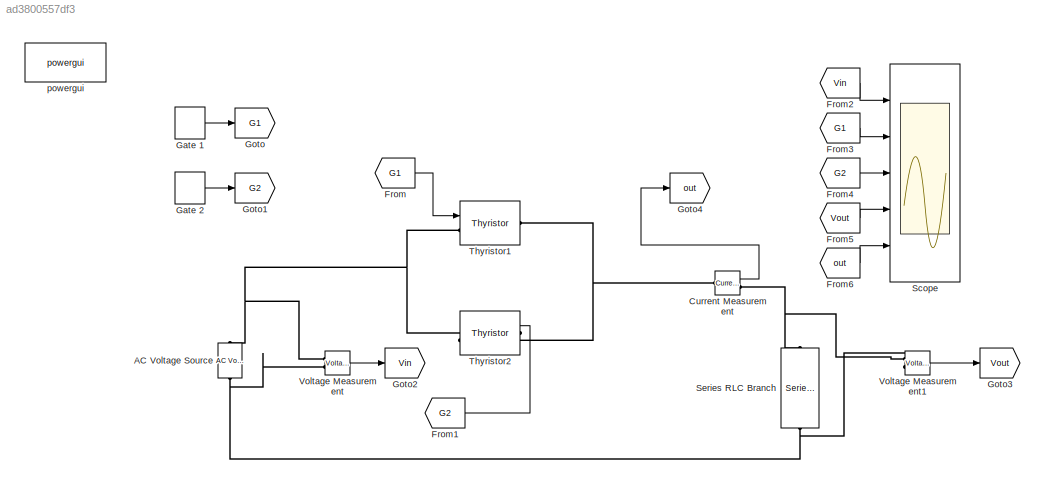
MODEL slx_ad3800557df3
KIND model
CONFIG AbsTol = auto
CONFIG EnableMultiTasking = off
CONFIG FixedStep = auto
CONFIG MaxStep = auto
CONFIG MinStep = auto
CONFIG RelTol = 1e-3
CONFIG SampleTimeConstraint = Unconstrained
CONFIG SolverName = VariableStepAuto
CONFIG StartTime = 0.0
CONFIG StopTime = 0.1
BLOCK [Reference] AC Voltage Source  REF=spsACVoltageSourceLib/AC Voltage Source
  Ports = [0, 0, 0, 0, 0, 1, 1]
  SourceBlock = spsACVoltageSourceLib/AC Voltage Source
  SourceProductBaseCode = PS
  SourceType = AC Voltage Source
BLOCK [Reference] Current Measurement  REF=spsCurrentMeasurementLib/Current Measurement
  Ports = [0, 1, 0, 0, 0, 1, 1]
  SourceBlock = spsCurrentMeasurementLib/Current Measurement
  SourceProductBaseCode = PS
  SourceType = Current Measurement
  UserDataPersistent = on
BLOCK [From] From
  GotoTag = G1
BLOCK [From] From1
  GotoTag = G2
BLOCK [From] From2
  GotoTag = Vin
BLOCK [From] From3
  GotoTag = G1
BLOCK [From] From4
  GotoTag = G2
BLOCK [From] From5
  GotoTag = Vout
BLOCK [From] From6
  GotoTag = out
BLOCK [DiscretePulseGenerator] Gate 1
  Period = 0.02
  PhaseDelay = 0.02*(80/360)
  Ports = [0, 1]
  PulseType = Time based
  PulseWidth = 5
BLOCK [DiscretePulseGenerator] Gate 2
  Period = 0.02
  PhaseDelay = 0.02*(260/360)
  Ports = [0, 1]
  PulseType = Time based
  PulseWidth = 5
BLOCK [Goto] Goto
  GotoTag = G1
BLOCK [Goto] Goto1
  GotoTag = G2
BLOCK [Goto] Goto2
  GotoTag = Vin
BLOCK [Goto] Goto3
  GotoTag = Vout
BLOCK [Goto] Goto4
  GotoTag = out
BLOCK [Scope] Scope
  Floating = off
  NumInputPorts = 5
  Ports = [5]
  ScopeSpecificationString = Simulink.scopes.TimeScopeBlockCfg('CurrentConfiguration', extmgr.ConfigurationSet(extmgr.Configuration('Core','General UI',true),extmgr.Configuration('Core','Source UI',true),extmgr.Configuration('Sources','WiredSimulink',true),extmgr.Configuration('Visuals','Time Domain',true,'SerializedDisplays',{struct('MinYLimReal','-212.13203','MaxYLimReal','212.13203','YLabelReal','volts','MinYLimMag',' 0.00...<+4638ch>
BLOCK [Reference] Series RLC Branch  REF=spsSeriesRLCBranchLib/Series RLC Branch
  NameLocation = left
  Ports = [0, 0, 0, 0, 0, 1, 1]
  SourceBlock = spsSeriesRLCBranchLib/Series RLC Branch
  SourceProductBaseCode = PS
  SourceType = Series RLC Branch
BLOCK [Reference] Thyristor1  REF=spsThyristorLib/Thyristor
  Ports = [1, 0, 0, 0, 0, 1, 1]
  SourceBlock = spsThyristorLib/Thyristor
  SourceProductBaseCode = PS
  SourceType = Thyristor
BLOCK [Reference] Thyristor2  REF=spsThyristorLib/Thyristor
  NameLocation = top
  Ports = [1, 0, 0, 0, 0, 1, 1]
  SourceBlock = spsThyristorLib/Thyristor
  SourceProductBaseCode = PS
  SourceType = Thyristor
BLOCK [Reference] Voltage Measurement  REF=spsVoltageMeasurementLib/Voltage Measurement
  Ports = [0, 1, 0, 0, 0, 2]
  SourceBlock = spsVoltageMeasurementLib/Voltage Measurement
  SourceProductBaseCode = PS
  SourceType = Voltage Measurement
  UserDataPersistent = on
BLOCK [Reference] Voltage Measurement1  REF=spsVoltageMeasurementLib/Voltage Measurement
  Ports = [0, 1, 0, 0, 0, 2]
  SourceBlock = spsVoltageMeasurementLib/Voltage Measurement
  SourceProductBaseCode = PS
  SourceType = Voltage Measurement
  UserDataPersistent = on
BLOCK [Reference] powergui  REF=spspowerguiLib/powergui
  Ports = []
  Priority = 1
  SourceBlock = spspowerguiLib/powergui
  SourceProductBaseCode = PS
  SourceType = PSB option menu block
LINE Current Measurement:1 -> Goto4:1
LINE From1:1 -> Thyristor2:1
LINE From2:1 -> Scope:1
LINE From3:1 -> Scope:2
LINE From4:1 -> Scope:3
LINE From5:1 -> Scope:4
LINE From6:1 -> Scope:5
LINE From:1 -> Thyristor1:1
LINE Gate 1:1 -> Goto:1
LINE Gate 2:1 -> Goto1:1
LINE Voltage Measurement1:1 -> Goto3:1
LINE Voltage Measurement:1 -> Goto2:1
PNET net1: AC Voltage Source:LConn1 -- Series RLC Branch:RConn1 -- Voltage Measurement1:LConn2 -- Voltage Measurement:LConn2
PNET net2: AC Voltage Source:RConn1 -- Thyristor1:LConn1 -- Thyristor2:RConn1 -- Voltage Measurement:LConn1
PNET net3: Current Measurement:LConn1 -- Thyristor1:RConn1 -- Thyristor2:LConn1
PNET net4: Current Measurement:RConn1 -- Series RLC Branch:LConn1 -- Voltage Measurement1:LConn1
note: PNET lines group multi-terminal physical nets as a canonical sorted terminal list (undirected conserving connections); 2-terminal nets keep the pairwise PLINE form
